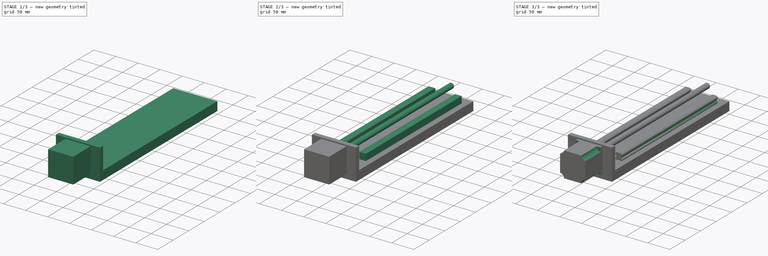
[diagram: build sequence overview — one tinted view per stage of 3, left to right]
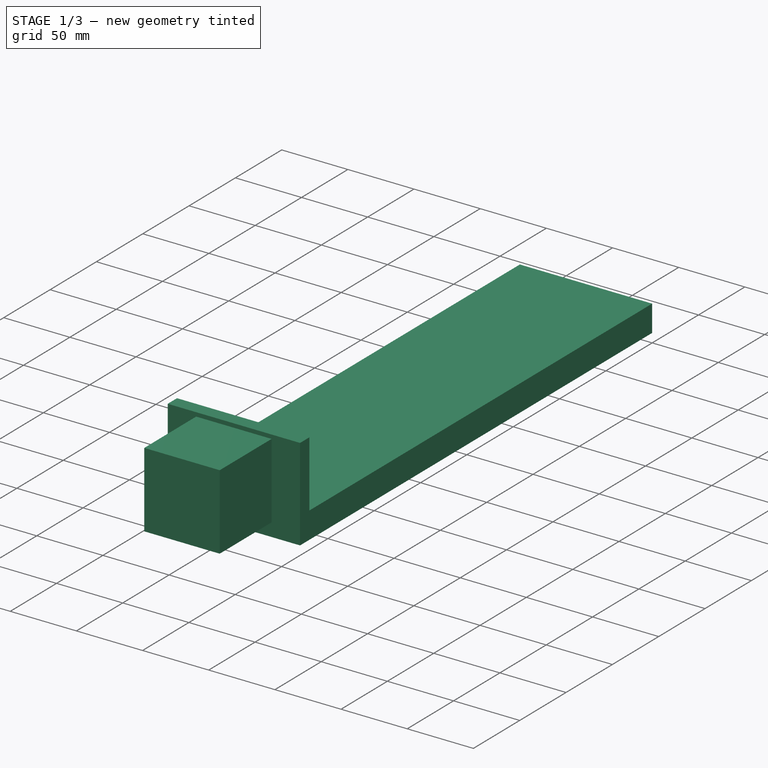
[diagram: stage 1 of 3 — iso view after this stage's code; geometry added in this stage tinted green]
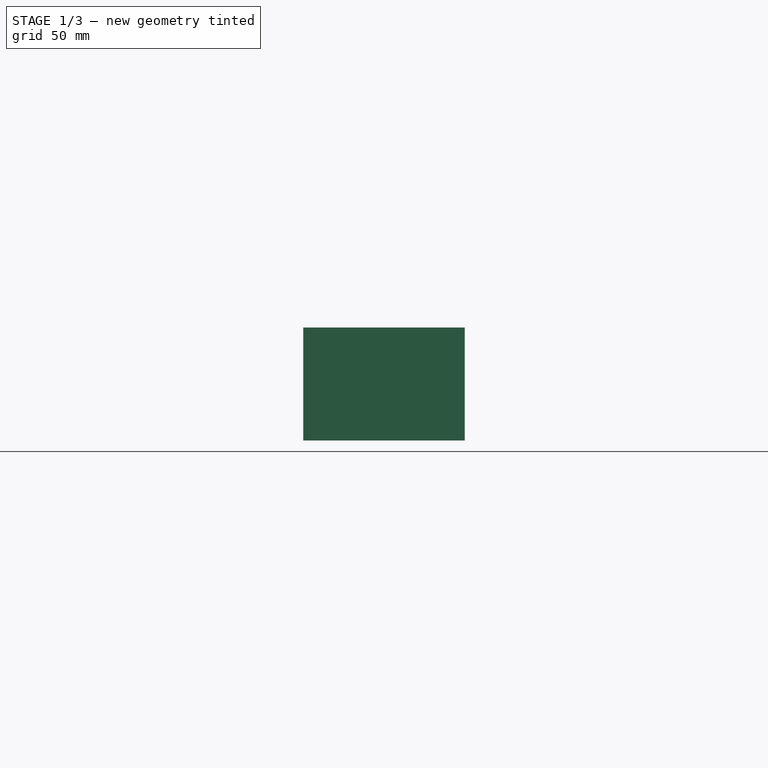
[diagram: stage 1 of 3 — front view after this stage's code; geometry added in this stage tinted green]
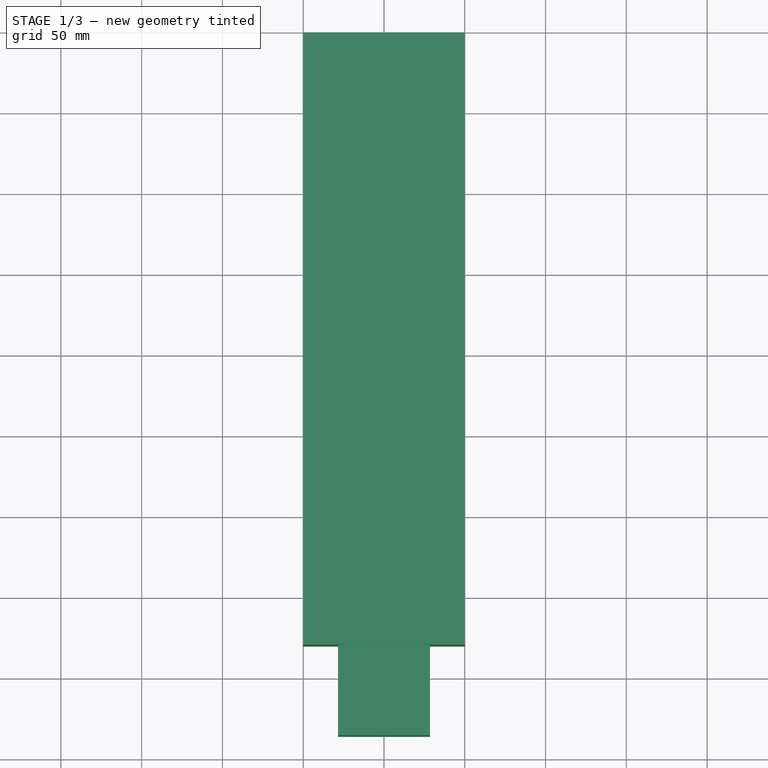
[diagram: stage 1 of 3 — top view after this stage's code; geometry added in this stage tinted green]
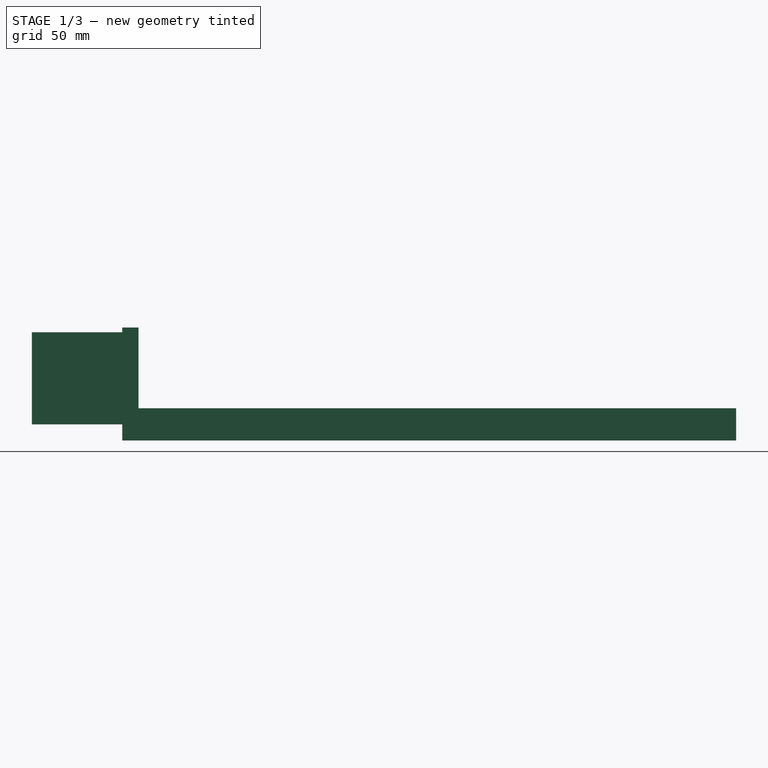
[diagram: stage 1 of 3 — right view after this stage's code; geometry added in this stage tinted green]
FCSTD DOCUMENT  (FreeCAD 0.19R)
Label: LINMOD200
License: All rights reserved
LicenseURL: http://en.wikipedia.org/wiki/All_rights_reserved
objects: Sketcher::SketchObject×8, PartDesign::Pad×5, PartDesign::Pocket×3, PartDesign::CoordinateSystem×3, PartDesign::Body×1
note: 28 computed .brp shape members not serialized (recipe doc carries the construction recipe); baked Part::Feature solids carry a one-line shape summary decoded from their .brp

FEATURE [Sketcher::SketchObject] Sketch
  FullyConstrained = true
  MapMode = 5
  Placement = pos=(0,0,0) rot=(1,0,0;1.5708rad)
  Support = -> [XZ_Plane]
  sketch-geometry (4):
    g0: LineSegment StartX=-50 StartY=10 StartZ=0 EndX=50 EndY=10 EndZ=0
    g1: LineSegment StartX=50 StartY=10 StartZ=0 EndX=50 EndY=-10 EndZ=0
    g2: LineSegment StartX=50 StartY=-10 StartZ=0 EndX=-50 EndY=-10 EndZ=0
    g3: LineSegment StartX=-50 StartY=-10 StartZ=0 EndX=-50 EndY=10 EndZ=0
  constraints (10):
    c: Coincident(g0,g1)
    c: Coincident(g1,g2)
    c: Coincident(g2,g3)
    c: Coincident(g3,g0)
    c: Horizontal(g2)
    c: Vertical(g1)
    c: DistanceY(g2,g0) = 20
    c: DistanceX(g0,g0) = 100
    c: Symmetric(g2,g0,g-1)
    c: Symmetric(g0,g0,g-2)
FEATURE [PartDesign::Pad] Pad
  Direction = (1,1,1)
  Length = 370
  Length2 = 100
  Placement = pos=(0,0,0) rot=(1,0,0;1.5708rad)
  Profile = -> Sketch
  Type = 0
FEATURE [Sketcher::SketchObject] Sketch001
  ExternalGeometry = -> [Pad]
  FullyConstrained = true
  MapMode = 5
  Placement = pos=(0,-370,8.14e-14) rot=(1,0,0;1.5708rad)
  Support = -> [Pad]
  sketch-geometry (4):
    g0: LineSegment StartX=-50 StartY=60 StartZ=0 EndX=50 EndY=60 EndZ=0
    g1: LineSegment StartX=50 StartY=60 StartZ=0 EndX=50 EndY=-10 EndZ=0
    g2: LineSegment StartX=50 StartY=-10 StartZ=0 EndX=-50 EndY=-10 EndZ=0
    g3: LineSegment StartX=-50 StartY=-10 StartZ=0 EndX=-50 EndY=60 EndZ=0
  constraints (10):
    c: Coincident(g0,g1)
    c: Coincident(g1,g2)
    c: Coincident(g2,g3)
    c: Coincident(g3,g0)
    c: Horizontal(g0)
    c: Vertical(g1)
    c: Vertical(g3)
    c: Coincident(g1,g-3)
    c: Coincident(g-3,g2)
    c: DistanceY(g1,g1) = 70
FEATURE [PartDesign::Pad] Pad001
  BaseFeature = -> Pad
  Direction = (1,1,1)
  Length = 10
  Length2 = 100
  Placement = pos=(0,0,0) rot=(1,0,0;1.5708rad)
  Profile = -> Sketch001
  Type = 0
FEATURE [Sketcher::SketchObject] Sketch002
  ExternalGeometry = -> [Pad001]
  FullyConstrained = true
  MapMode = 5
  Placement = pos=(0,-380,3.078e-13) rot=(1,0,0;1.5708rad)
  Support = -> [Pad001]
  sketch-geometry (4):
    g0: LineSegment StartX=-28.5 StartY=57 StartZ=0 EndX=28.5 EndY=57 EndZ=0
    g1: LineSegment StartX=28.5 StartY=57 StartZ=0 EndX=28.5 EndY=0 EndZ=0
    g2: LineSegment StartX=28.5 StartY=0 StartZ=0 EndX=-28.5 EndY=0 EndZ=0
    g3: LineSegment StartX=-28.5 StartY=0 StartZ=0 EndX=-28.5 EndY=57 EndZ=0
  constraints (11):
    c: Coincident(g0,g1)
    c: Coincident(g1,g2)
    c: Coincident(g2,g3)
    c: Coincident(g3,g0)
    c: Horizontal(g0)
    c: Vertical(g1)
    c: Vertical(g3)
    c: DistanceY(g1,g1) = 57
    c: DistanceX(g0,g0) = 57
    c: Symmetric(g1,g2,g-2)
    c: PointOnObject(g1,g-1)
FEATURE [PartDesign::Pad] Pad002
  BaseFeature = -> Pad001
  Direction = (1,1,1)
  Length = 56
  Length2 = 100
  Placement = pos=(0,0,0) rot=(1,0,0;1.5708rad)
  Profile = -> Sketch002
  Type = 0
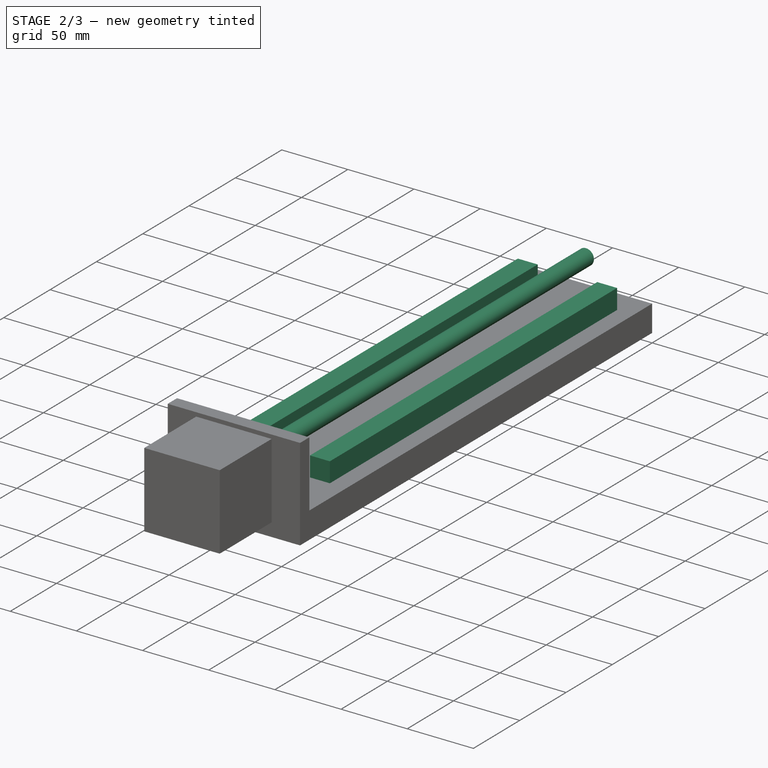
[diagram: stage 2 of 3 — iso view after this stage's code; geometry added in this stage tinted green]
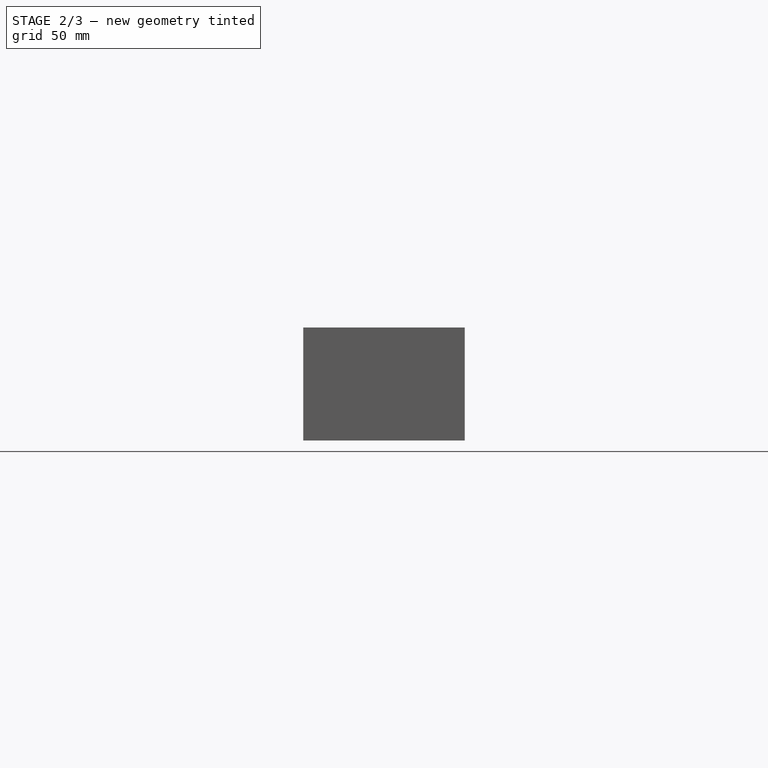
[diagram: stage 2 of 3 — front view after this stage's code; geometry added in this stage tinted green]
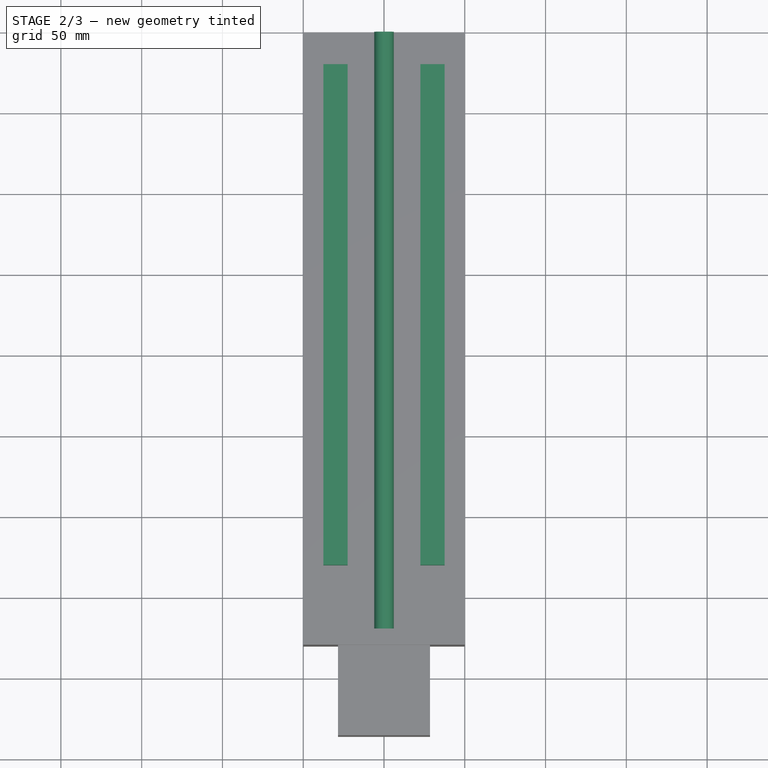
[diagram: stage 2 of 3 — top view after this stage's code; geometry added in this stage tinted green]
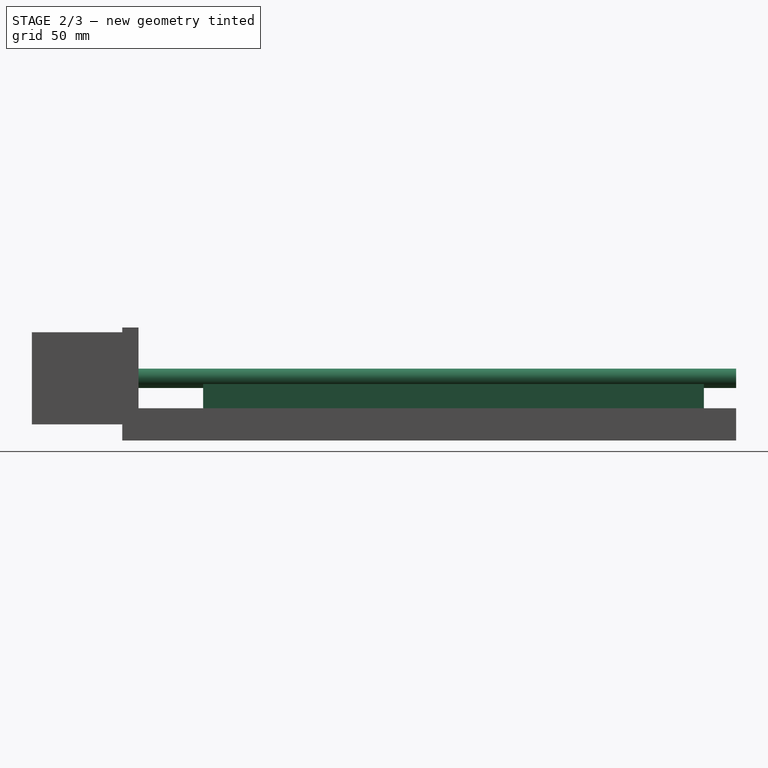
[diagram: stage 2 of 3 — right view after this stage's code; geometry added in this stage tinted green]
FEATURE [Sketcher::SketchObject] Sketch003
  ExternalGeometry = -> [Pad002]
  FullyConstrained = true
  MapMode = 5
  Placement = pos=(0,4.4e-15,10) rot=(0,0,1;3.14159rad)
  Support = -> [Pad002]
  sketch-geometry (8):
    g0: LineSegment StartX=-37.5 StartY=330 StartZ=0 EndX=-22.5 EndY=330 EndZ=0
    g1: LineSegment StartX=-22.5 StartY=330 StartZ=0 EndX=-22.5 EndY=20 EndZ=0
    g2: LineSegment StartX=-22.5 StartY=20 StartZ=0 EndX=-37.5 EndY=20 EndZ=0
    g3: LineSegment StartX=-37.5 StartY=20 StartZ=0 EndX=-37.5 EndY=330 EndZ=0
    g4: LineSegment StartX=22.5 StartY=330 StartZ=0 EndX=37.5 EndY=330 EndZ=0
    g5: LineSegment StartX=37.5 StartY=330 StartZ=0 EndX=37.5 EndY=20 EndZ=0
    g6: LineSegment StartX=37.5 StartY=20 StartZ=0 EndX=22.5 EndY=20 EndZ=0
    g7: LineSegment StartX=22.5 StartY=20 StartZ=0 EndX=22.5 EndY=330 EndZ=0
  constraints (23):
    c: Coincident(g0,g1)
    c: Coincident(g1,g2)
    c: Coincident(g2,g3)
    c: Coincident(g3,g0)
    c: Horizontal(g0)
    c: Horizontal(g2)
    c: Vertical(g1)
    c: Vertical(g3)
    c: Coincident(g4,g5)
    c: Coincident(g5,g6)
    c: Coincident(g6,g7)
    c: Coincident(g7,g4)
    c: Horizontal(g4)
    c: Horizontal(g6)
    c: Vertical(g5)
    c: Vertical(g7)
    c: Symmetric(g6,g1,g-2)
    c: DistanceX(g2,g2) = 15
    c: DistanceX(g6,g6) = 15
    c: DistanceY(g-1,g1) = 20
    c: DistanceY(g0,g-3) = 40
    c: DistanceY(g4,g-3) = 40
    c: DistanceX(g1,g6) = 45
FEATURE [PartDesign::Pad] Pad003
  BaseFeature = -> Pad002
  Direction = (1,1,1)
  Length = 15
  Length2 = 100
  Placement = pos=(0,0,0) rot=(1,0,0;1.5708rad)
  Profile = -> Sketch003
  Type = 0
FEATURE [Sketcher::SketchObject] Sketch004
  ExternalGeometry = -> [Pad003]
  FullyConstrained = true
  MapMode = 5
  Placement = pos=(0,-370,2.997e-13) rot=(-1,0,0;1.5708rad)
  Support = -> [Pad003]
  sketch-geometry (1):
    g0: Circle CenterX=0 CenterY=-28.5 CenterZ=0 NormalX=0 NormalY=0 NormalZ=1 AngleXU=0 Radius=6
  constraints (3):
    c: PointOnObject(g0,g-2)
    c: Diameter(g0) = 12
    c: DistanceY(g-3,g0) = 28.5
FEATURE [PartDesign::Pad] Pad004
  BaseFeature = -> Pad003
  Direction = (1,1,1)
  Length = 370
  Length2 = 100
  Placement = pos=(0,0,0) rot=(1,0,0;1.5708rad)
  Profile = -> Sketch004
  Type = 0
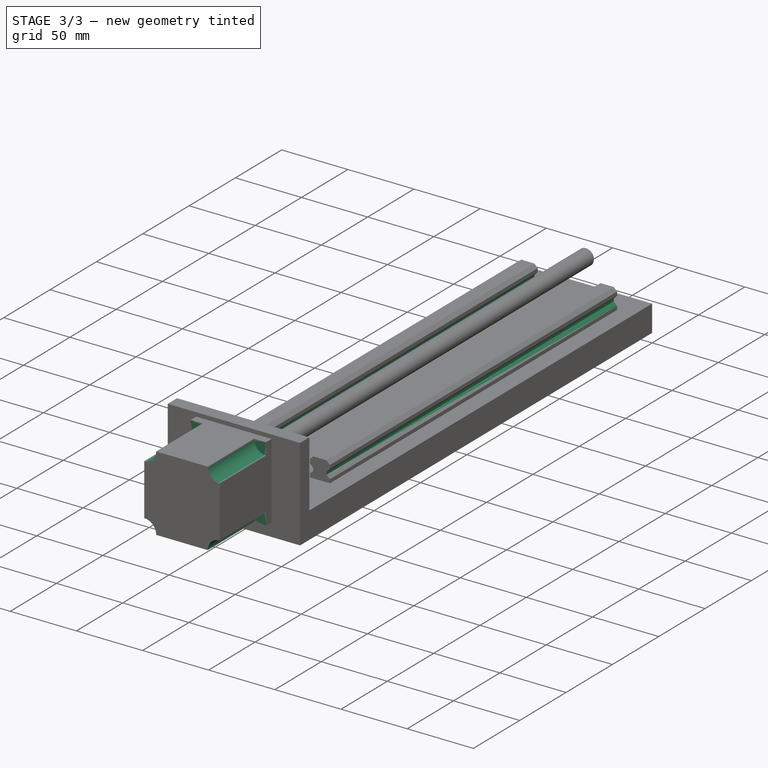
[diagram: stage 3 of 3 — iso view after this stage's code; geometry added in this stage tinted green]
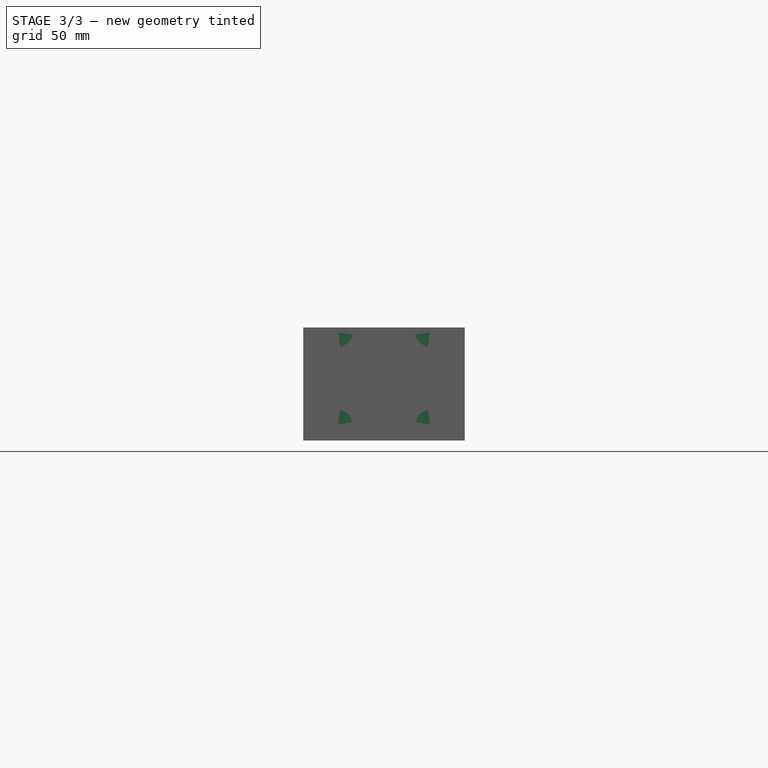
[diagram: stage 3 of 3 — front view after this stage's code; geometry added in this stage tinted green]
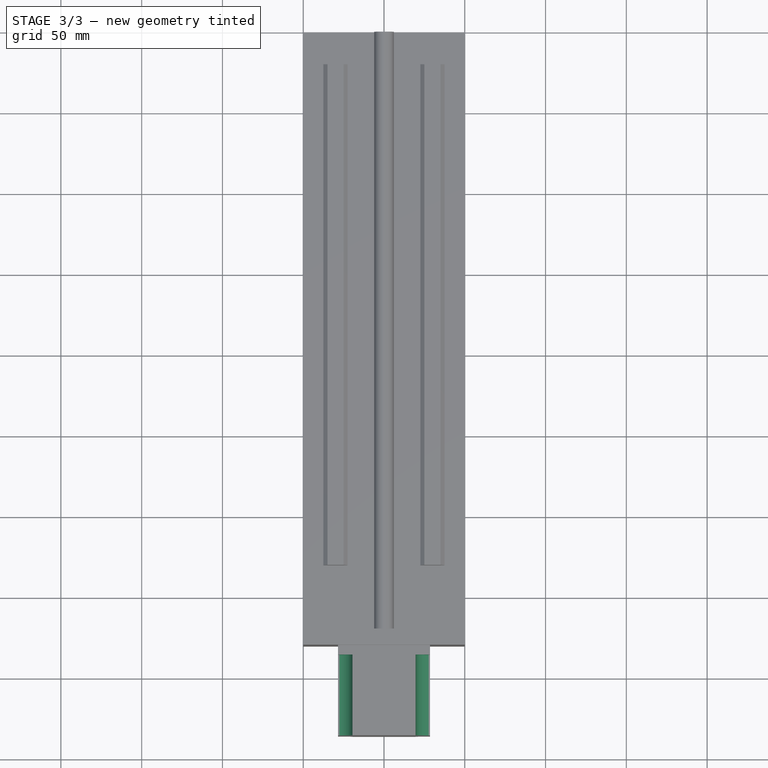
[diagram: stage 3 of 3 — top view after this stage's code; geometry added in this stage tinted green]
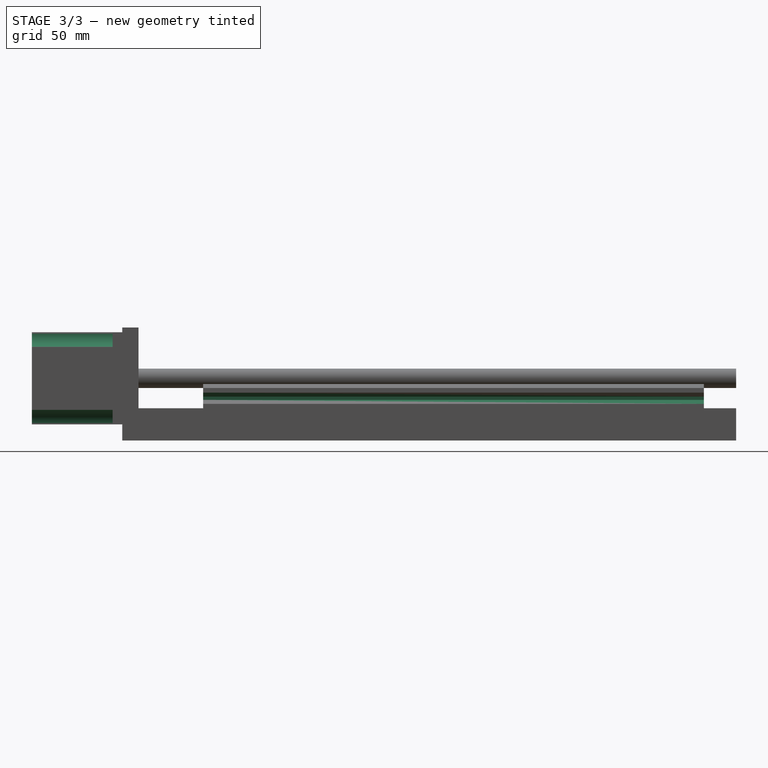
[diagram: stage 3 of 3 — right view after this stage's code; geometry added in this stage tinted green]
FEATURE [Sketcher::SketchObject] Sketch005
  FullyConstrained = true
  MapMode = 5
  Placement = pos=(0,-4.4e-15,-10) rot=(1,0,0;3.14159rad)
  Support = -> [Pad004]
  sketch-geometry (8):
    g0: Circle CenterX=-25 CenterY=10 CenterZ=0 NormalX=0 NormalY=0 NormalZ=1 AngleXU=0 Radius=4
    g1: Circle CenterX=25 CenterY=10 CenterZ=0 NormalX=0 NormalY=0 NormalZ=1 AngleXU=0 Radius=4
    g2: Circle CenterX=25 CenterY=35 CenterZ=0 NormalX=0 NormalY=0 NormalZ=1 AngleXU=0 Radius=4
    g3: Circle CenterX=-25 CenterY=35 CenterZ=0 NormalX=0 NormalY=0 NormalZ=1 AngleXU=0 Radius=4
    g4: Circle CenterX=-25 CenterY=93 CenterZ=0 NormalX=0 NormalY=0 NormalZ=1 AngleXU=0 Radius=4
    g5: Circle CenterX=-25 CenterY=68 CenterZ=0 NormalX=0 NormalY=0 NormalZ=1 AngleXU=0 Radius=4
    g6: Circle CenterX=25 CenterY=93 CenterZ=0 NormalX=0 NormalY=0 NormalZ=1 AngleXU=0 Radius=4
    g7: Circle CenterX=25 CenterY=68 CenterZ=0 NormalX=0 NormalY=0 NormalZ=1 AngleXU=0 Radius=4
  constraints (20):
    c: Equal(g1,g2)
    c: Equal(g2,g7)
    c: Equal(g7,g6)
    c: Equal(g6,g4)
    c: Equal(g4,g5)
    c: Equal(g5,g3)
    c: Equal(g3,g0)
    c: Diameter(g6) = 8
    c: Symmetric(g4,g6,g-2)
    c: Symmetric(g5,g7,g-2)
    c: Symmetric(g3,g2,g-2)
    c: Symmetric(g0,g1,g-2)
    c: DistanceX(g4,g6) = 50
    c: DistanceX(g5,g7) = 50
    c: DistanceX(g3,g2) = 50
    c: DistanceX(g0,g1) = 50
    c: DistanceY(g5,g4) = 25
    c: DistanceY(g0,g3) = 25
    c: DistanceY(g3,g5) = 33
    c: DistanceY(g-1,g0) = 10
FEATURE [PartDesign::Pocket] Pocket
  BaseFeature = -> Pad004
  Length = 15
  Length2 = 100
  Placement = pos=(0,0,0) rot=(1,0,0;1.5708rad)
  Profile = -> Sketch005
  Type = 0
FEATURE [PartDesign::CoordinateSystem] LCS_m1
  AttacherType = Attacher::AttachEngine3D
  MapMode = 11
  Placement = pos=(25,-10,-10) rot=(0.707107,-0.707107,0;3.14159rad)
  Support = -> [Pocket]
FEATURE [PartDesign::CoordinateSystem] LCS_m2
  AttacherType = Attacher::AttachEngine3D
  MapMode = 11
  Placement = pos=(-25,-10,-10) rot=(0.707107,-0.707107,0;3.14159rad)
  Support = -> [Pocket]
FEATURE [PartDesign::CoordinateSystem] LCS_caret_mount
  AttacherType = Attacher::AttachEngine3D
  AttachmentOffset = pos=(-30,30,0) rot=(0,0,1;0rad)
  MapMode = 5
  Placement = pos=(30,-30,25) rot=(0,0,1;3.14159rad)
  Support = -> [Pocket]
FEATURE [Sketcher::SketchObject] Sketch006
  ExternalGeometry = -> [Pocket]
  FullyConstrained = true
  MapMode = 5
  Placement = pos=(0,-436,4.36e-13) rot=(1,0,0;1.5708rad)
  Support = -> [Pocket]
  sketch-geometry (12):
    g0: ArcOfCircle CenterX=-28.5 CenterY=57 CenterZ=0 NormalX=0 NormalY=0 NormalZ=1 AngleXU=0 Radius=9 StartAngle=4.71239 EndAngle=6.28319
    g1: ArcOfCircle CenterX=28.5 CenterY=57 CenterZ=0 NormalX=0 NormalY=0 NormalZ=1 AngleXU=0 Radius=9 StartAngle=3.14159 EndAngle=4.71239
    g2: ArcOfCircle CenterX=28.5 CenterY=1.279e-13 CenterZ=0 NormalX=0 NormalY=0 NormalZ=1 AngleXU=0 Radius=9 StartAngle=1.5708 EndAngle=3.14159
    g3: ArcOfCircle CenterX=-28.5 CenterY=1.315e-13 CenterZ=0 NormalX=0 NormalY=0 NormalZ=1 AngleXU=0 Radius=9 StartAngle=-1.42e-14 EndAngle=1.5708
    g4: LineSegment StartX=-19.5 StartY=3.1e-15 StartZ=0 EndX=-28.5 EndY=1.315e-13 EndZ=0
    g5: LineSegment StartX=-28.5 StartY=9 StartZ=0 EndX=-28.5 EndY=1.315e-13 EndZ=0
    g6: LineSegment StartX=28.5 StartY=1.279e-13 StartZ=0 EndX=19.5 EndY=-2.9e-15 EndZ=0
    g7: LineSegment StartX=28.5 StartY=1.279e-13 StartZ=0 EndX=28.5 EndY=9 EndZ=0
    g8: LineSegment StartX=-19.5 StartY=57 StartZ=0 EndX=-28.5 EndY=57 EndZ=0
    g9: LineSegment StartX=-28.5 StartY=57 StartZ=0 EndX=-28.5 EndY=48 EndZ=0
    g10: LineSegment StartX=28.5 StartY=48 StartZ=0 EndX=28.5 EndY=57 EndZ=0
    g11: LineSegment StartX=28.5 StartY=57 StartZ=0 EndX=19.5 EndY=57 EndZ=0
  constraints (32):
    c: Coincident(g0,g-5)
    c: PointOnObject(g0,g-3)
    c: PointOnObject(g0,g-5)
    c: Coincident(g1,g-5)
    c: PointOnObject(g1,g-5)
    c: PointOnObject(g1,g-4)
    c: Coincident(g2,g-4)
    c: PointOnObject(g2,g-4)
    c: PointOnObject(g2,g-1)
    c: Coincident(g3,g-3)
    c: PointOnObject(g3,g-1)
    c: PointOnObject(g3,g-3)
    c: Coincident(g4,g3)
    c: Coincident(g4,g3)
    c: Coincident(g5,g3)
    c: Coincident(g5,g3)
    c: Coincident(g6,g2)
    c: Coincident(g7,g2)
    c: Coincident(g7,g2)
    c: Coincident(g6,g2)
    c: Coincident(g8,g0)
    c: Coincident(g8,g0)
    c: Coincident(g9,g0)
    c: Coincident(g9,g0)
    c: Coincident(g10,g1)
    c: Coincident(g10,g1)
    c: Coincident(g11,g1)
    c: Coincident(g11,g1)
    c: Equal(g0,g3)
    c: Equal(g3,g2)
    c: Equal(g2,g1)
    c: Radius(g1) = 9
FEATURE [PartDesign::Pocket] Pocket001
  BaseFeature = -> Pocket
  Length = 50
  Length2 = 100
  Placement = pos=(0,0,0) rot=(1,0,0;1.5708rad)
  Profile = -> Sketch006
  Type = 0
FEATURE [Sketcher::SketchObject] Sketch007
  ExternalGeometry = -> [Pocket001]
  FullyConstrained = true
  MapMode = 5
  Placement = pos=(0,-20,6.6e-15) rot=(-1,0,0;1.5708rad)
  Support = -> [Pocket001]
  sketch-geometry (29):
    g0: LineSegment StartX=-37.5 StartY=-22.5 StartZ=0 EndX=-35 EndY=-25 EndZ=0
    g1: LineSegment StartX=-37.5 StartY=-25 StartZ=0 EndX=-35 EndY=-25 EndZ=0
    g2: LineSegment StartX=-37.5 StartY=-19.7 StartZ=0 EndX=-35 EndY=-17.2 EndZ=0
    g3: LineSegment StartX=-35 StartY=-17.2 StartZ=0 EndX=-35 EndY=-15.2 EndZ=0
    g4: LineSegment StartX=-35 StartY=-15.2 StartZ=0 EndX=-37.5 EndY=-12.7 EndZ=0
    g5: LineSegment StartX=-37.5 StartY=-12.7 StartZ=0 EndX=-37.5 EndY=-19.7 EndZ=0
    g6: LineSegment StartX=-37.5 StartY=-22.5 StartZ=0 EndX=-37.5 EndY=-25 EndZ=0
    g7: LineSegment StartX=22.5 StartY=-22.5 StartZ=0 EndX=25 EndY=-25 EndZ=0
    g8: LineSegment StartX=22.5 StartY=-25 StartZ=0 EndX=25 EndY=-25 EndZ=0
    g9: LineSegment StartX=22.5 StartY=-19.7 StartZ=0 EndX=25 EndY=-17.2 EndZ=0
    g10: LineSegment StartX=25 StartY=-17.2 StartZ=0 EndX=25 EndY=-15.2 EndZ=0
    g11: LineSegment StartX=25 StartY=-15.2 StartZ=0 EndX=22.5 EndY=-12.7 EndZ=0
    g12: LineSegment StartX=22.5 StartY=-12.7 StartZ=0 EndX=22.5 EndY=-19.7 EndZ=0
    g13: LineSegment StartX=22.5 StartY=-22.5 StartZ=0 EndX=22.5 EndY=-25 EndZ=0
    g14: LineSegment StartX=-30 StartY=-25 StartZ=0 EndX=-30 EndY=-10 EndZ=0
    g15: LineSegment StartX=-22.5 StartY=-22.5 StartZ=0 EndX=-25 EndY=-25 EndZ=0
    g16: LineSegment StartX=-22.5 StartY=-25 StartZ=0 EndX=-25 EndY=-25 EndZ=0
    g17: LineSegment StartX=-22.5 StartY=-19.7 StartZ=0 EndX=-25 EndY=-17.2 EndZ=0
    g18: LineSegment StartX=-25 StartY=-17.2 StartZ=0 EndX=-25 EndY=-15.2 EndZ=0
    g19: LineSegment StartX=-25 StartY=-15.2 StartZ=0 EndX=-22.5 EndY=-12.7 EndZ=0
    g20: LineSegment StartX=-22.5 StartY=-12.7 StartZ=0 EndX=-22.5 EndY=-19.7 EndZ=0
    g21: LineSegment StartX=-22.5 StartY=-22.5 StartZ=0 EndX=-22.5 EndY=-25 EndZ=0
    g22: LineSegment StartX=37.5 StartY=-22.5 StartZ=0 EndX=35 EndY=-25 EndZ=0
    g23: LineSegment StartX=37.5 StartY=-25 StartZ=0 EndX=35 EndY=-25 EndZ=0
    g24: LineSegment StartX=37.5 StartY=-19.7 StartZ=0 EndX=35 EndY=-17.2 EndZ=0
    g25: LineSegment StartX=35 StartY=-17.2 StartZ=0 EndX=35 EndY=-15.2 EndZ=0
    g26: LineSegment StartX=35 StartY=-15.2 StartZ=0 EndX=37.5 EndY=-12.7 EndZ=0
    g27: LineSegment StartX=37.5 StartY=-12.7 StartZ=0 EndX=37.5 EndY=-19.7 EndZ=0
    g28: LineSegment StartX=37.5 StartY=-22.5 StartZ=0 EndX=37.5 EndY=-25 EndZ=0
  constraints (84):
    c: PointOnObject(g0,g-3)
    c: Coincident(g1,g-3)
    c: Coincident(g1,g0)
    c: Horizontal(g1)
    c: PointOnObject(g2,g-3)
    c: Coincident(g3,g2)
    c: Vertical(g3)
    c: Coincident(g4,g3)
    c: PointOnObject(g4,g-3)
    c: Coincident(g5,g4)
    c: Coincident(g5,g2)
    c: Coincident(g6,g0)
    c: Coincident(g6,g1)
    c: DistanceX(g1,g1) = 2.5
    c: DistanceY(g6,g6) = 2.5
    c: DistanceX(g2,g2) = 2.5
    c: DistanceY(g5,g5) = 7
    c: DistanceY(g2,g2) = 2.5
    c: DistanceY(g3,g3) = 2
    c: DistanceY(g0,g2) = 2.8
    c: Coincident(g8,g7)
    c: Horizontal(g8)
    c: Coincident(g10,g9)
    c: Vertical(g10)
    c: Coincident(g11,g10)
    c: Coincident(g12,g11)
    c: Coincident(g12,g9)
    c: Coincident(g13,g7)
    c: Coincident(g13,g8)
    c: DistanceX(g8,g8) = 2.5
    c: DistanceY(g13,g13) = 2.5
    c: DistanceX(g9,g9) = 2.5
    c: DistanceY(g12,g12) = 7
    c: DistanceY(g9,g9) = 2.5
    c: DistanceY(g10,g10) = 2
    c: DistanceY(g7,g9) = 2.8
    c: Coincident(g13,g-5)
    c: PointOnObject(g7,g-5)
    c: PointOnObject(g9,g-5)
    c: PointOnObject(g11,g-5)
    c: PointOnObject(g14,g-7)
    c: PointOnObject(g14,g-8)
    c: Symmetric(g1,g-7,g14)
    c: Coincident(g16,g15)
    c: Coincident(g18,g17)
    c: Coincident(g19,g18)
    c: Coincident(g20,g19)
    c: Coincident(g20,g17)
    c: Coincident(g21,g15)
    c: Coincident(g21,g16)
    c: DistanceX(g16,g16) = 2.5
    c: DistanceX(g21,g21) = 0
    c: PointOnObject(g15,g-4)
    c: PointOnObject(g15,g-7)
    c: Horizontal(g16)
    c: DistanceY(g21,g21) = 2.5
    c: DistanceY(g20,g20) = 7
    c: DistanceY(g18,g18) = 2
    c: DistanceX(g17,g17) = 2.5
    c: DistanceX(g19,g19) = 2.5
    c: DistanceY(g17,g17) = 2.5
    c: PointOnObject(g19,g-4)
    c: Vertical(g20)
    c: DistanceY(g15,g17) = 2.8
    c: Coincident(g23,g22)
    c: Coincident(g25,g24)
    c: Coincident(g26,g25)
    c: Coincident(g27,g26)
    c: Coincident(g27,g24)
    c: Coincident(g28,g22)
    c: Coincident(g28,g23)
    c: DistanceX(g23,g23) = 2.5
    c: DistanceX(g28,g28) = 0
    c: Horizontal(g23)
    c: DistanceY(g28,g28) = 2.5
    c: DistanceY(g27,g27) = 7
    c: DistanceY(g25,g25) = 2
    c: DistanceX(g24,g24) = 2.5
    c: DistanceX(g26,g26) = 2.5
    c: DistanceY(g24,g24) = 2.5
    c: Vertical(g27)
    c: DistanceY(g22,g24) = 2.8
    c: Coincident(g23,g-6)
    c: PointOnObject(g24,g-6)
FEATURE [PartDesign::Pocket] Pocket002
  BaseFeature = -> Pocket001
  Length = 310
  Length2 = 100
  Placement = pos=(0,0,0) rot=(1,0,0;1.5708rad)
  Profile = -> Sketch007
  Type = 0
FEATURE [PartDesign::Body] Body
  Group = -> [Sketch,Pad,Sketch001,Pad001,Sketch002,Pad002,Sketch003,Pad003,Sketch004,Pad004,Sketch005,Pocket,LCS_m1,LCS_m2,LCS_caret_mount,Sketch006,Pocket001,Sketch007,Pocket002]
  Origin = -> Origin
  Tip = -> Pocket002
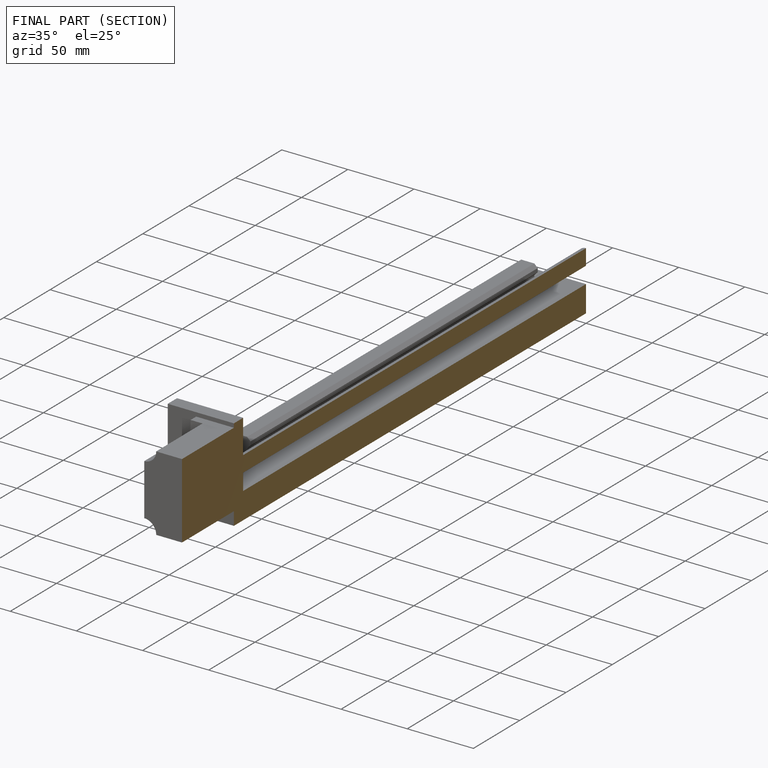
[diagram: finished part — half-section view (interior)]
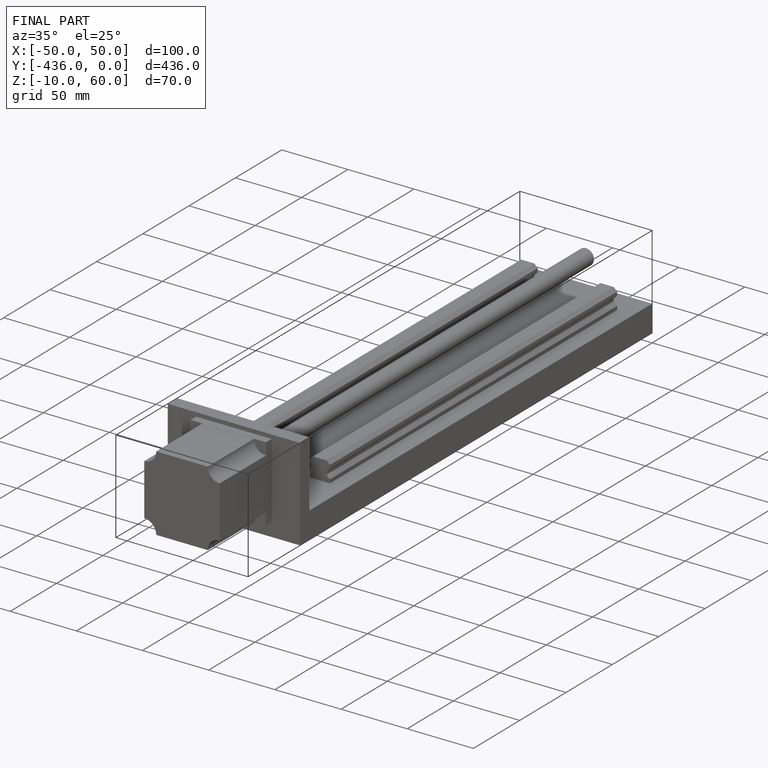
[diagram: finished part — iso view with bounding-box wireframe]
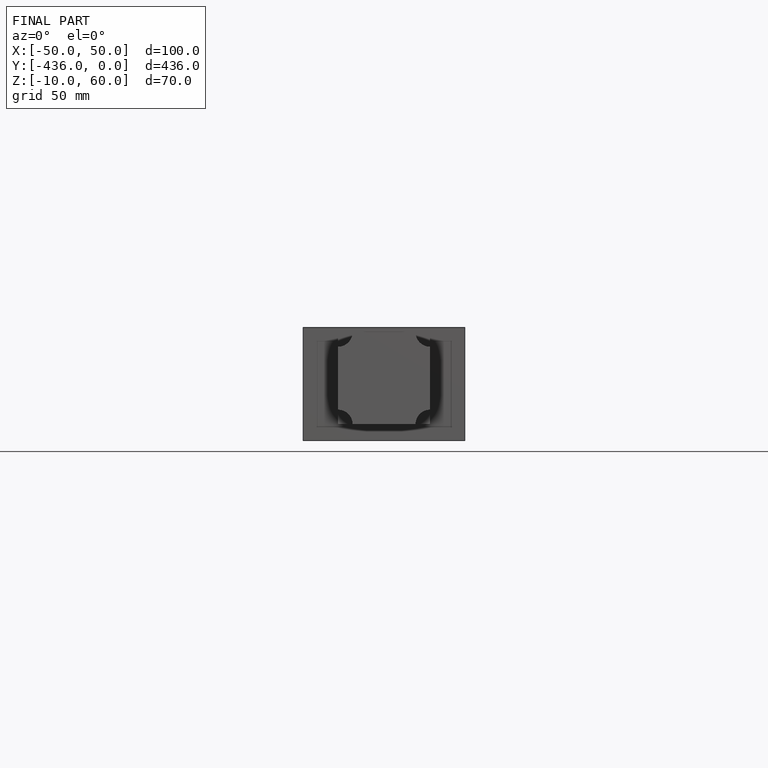
[diagram: finished part — front view with bounding-box wireframe]
